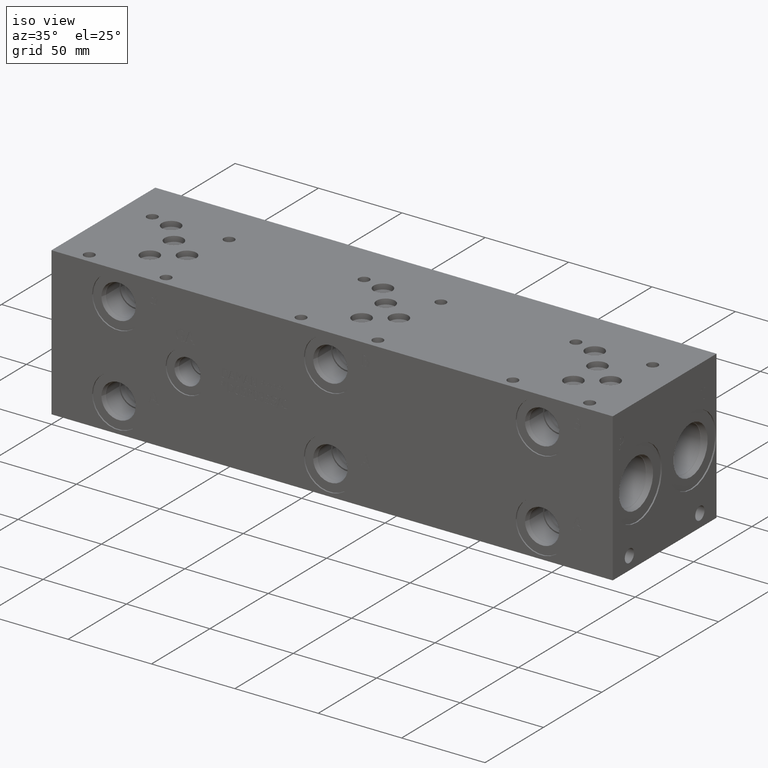
[diagram: clean part render]
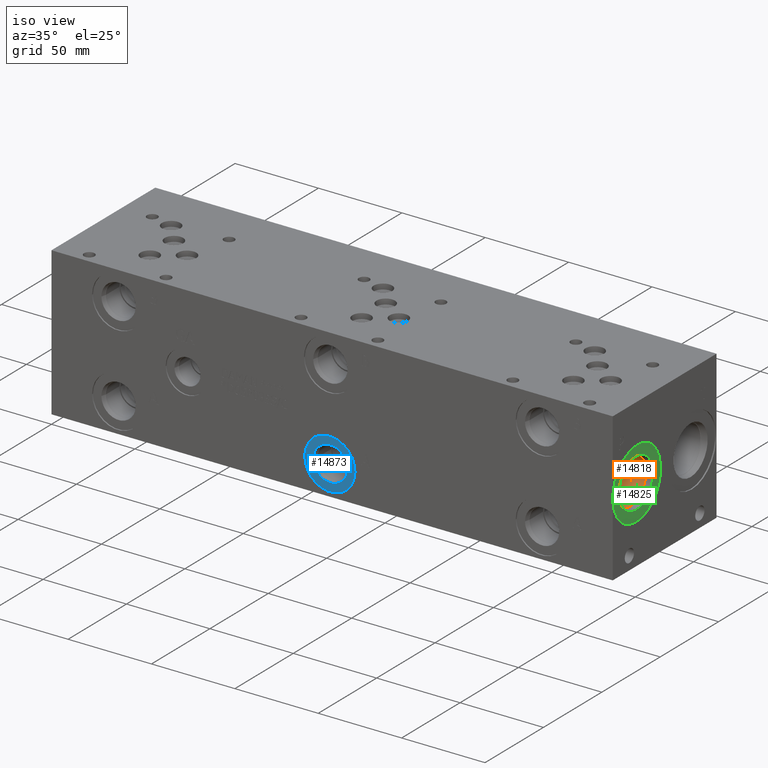
[diagram: same view with three faces highlighted in distinct colors, each labeled with its STEP entity id]
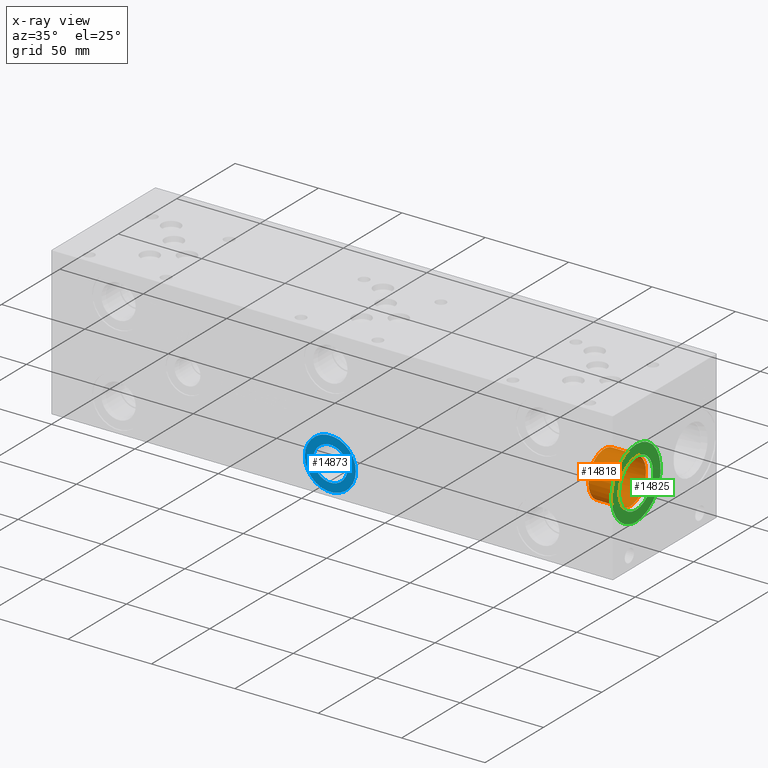
[diagram: x-ray of the same camera — body ghosted, the three highlighted faces saturated]
A machine part, iso view with three faces highlighted in distinct colors.
The next image is the same camera in x-ray (body ghosted, the three faces saturated) — at least one of them is partly hidden behind the body in this view.
Their STEP definitions:

[orange] entity #14818 — the highlighted cylindrical surface (bore or boss wall) has radius 13.5001 mm, axis along (1, 0, 0).
#101=CYLINDRICAL_SURFACE('',#15490,13.5001);
#270=CIRCLE('',#15487,13.5001);
#271=CIRCLE('',#15488,13.5001);
#273=CIRCLE('',#15491,13.5001);
#274=CIRCLE('',#15492,13.5001);
#1891=FACE_OUTER_BOUND('',#2739,.T.);
#2739=EDGE_LOOP('',(#12278,#12279,#12280,#12281,#12282,#12283));
#4137=LINE('',#25105,#5434);
#5434=VECTOR('',#18063,13.5001);
#6681=VERTEX_POINT('',#25095);
#6682=VERTEX_POINT('',#25096);
#6684=VERTEX_POINT('',#25102);
#6685=VERTEX_POINT('',#25103);
#8644=EDGE_CURVE('',#6681,#6682,#270,.T.);
#8645=EDGE_CURVE('',#6682,#6681,#271,.T.);
#8647=EDGE_CURVE('',#6684,#6685,#273,.T.);
#8648=EDGE_CURVE('',#6684,#6682,#4137,.T.);
#8649=EDGE_CURVE('',#6685,#6684,#274,.T.);
#12278=ORIENTED_EDGE('',*,*,#8647,.F.);
#12279=ORIENTED_EDGE('',*,*,#8648,.T.);
#12280=ORIENTED_EDGE('',*,*,#8644,.F.);
#12281=ORIENTED_EDGE('',*,*,#8645,.F.);
#12282=ORIENTED_EDGE('',*,*,#8648,.F.);
#12283=ORIENTED_EDGE('',*,*,#8649,.F.);
#14818=ADVANCED_FACE('',(#1891),#101,.F.);
#15487=AXIS2_PLACEMENT_3D('',#25097,#18053,#18054);
#15488=AXIS2_PLACEMENT_3D('',#25098,#18055,#18056);
#15490=AXIS2_PLACEMENT_3D('',#25101,#18059,#18060);
#15491=AXIS2_PLACEMENT_3D('',#25104,#18061,#18062);
#15492=AXIS2_PLACEMENT_3D('',#25106,#18064,#18065);
#18053=DIRECTION('center_axis',(1.,0.,0.));
#18054=DIRECTION('ref_axis',(0.,1.,0.));
#18055=DIRECTION('center_axis',(1.,0.,0.));
#18056=DIRECTION('ref_axis',(0.,1.,0.));
#18059=DIRECTION('center_axis',(1.,0.,0.));
#18060=DIRECTION('ref_axis',(0.,1.,0.));
#18061=DIRECTION('center_axis',(-1.,0.,0.));
#18062=DIRECTION('ref_axis',(0.,1.,0.));
#18063=DIRECTION('',(-1.,0.,0.));
#18064=DIRECTION('center_axis',(-1.,0.,0.));
#18065=DIRECTION('ref_axis',(0.,1.,0.));
#25095=CARTESIAN_POINT('',(316.7126,34.5821,44.45));
#25096=CARTESIAN_POINT('',(316.7126,7.5819,44.45));
#25097=CARTESIAN_POINT('Origin',(316.7126,21.082,44.45));
#25098=CARTESIAN_POINT('Origin',(316.7126,21.082,44.45));
#25101=CARTESIAN_POINT('Origin',(326.6313,21.082,44.45));
#25102=CARTESIAN_POINT('',(332.2701,7.5819,44.45));
#25103=CARTESIAN_POINT('',(332.2701,21.082,57.9501));
#25104=CARTESIAN_POINT('Origin',(332.2701,21.082,44.45));
#25105=CARTESIAN_POINT('',(326.6313,7.5819,44.45));
#25106=CARTESIAN_POINT('Origin',(332.2701,21.082,44.45));

[blue] entity #14873 — the highlighted planar face has unit normal (0, 1, 0).
#353=CIRCLE('',#15625,15.3162);
#354=CIRCLE('',#15626,15.3162);
#355=CIRCLE('',#15628,10.2997);
#356=CIRCLE('',#15629,10.2997);
#676=FACE_BOUND('',#2806,.T.);
#1946=FACE_OUTER_BOUND('',#2805,.T.);
#2805=EDGE_LOOP('',(#12553,#12554));
#2806=EDGE_LOOP('',(#12555,#12556));
#6770=VERTEX_POINT('',#25365);
#6771=VERTEX_POINT('',#25367);
#6772=VERTEX_POINT('',#25371);
#6773=VERTEX_POINT('',#25372);
#8771=EDGE_CURVE('',#6770,#6771,#353,.T.);
#8772=EDGE_CURVE('',#6771,#6770,#354,.T.);
#8773=EDGE_CURVE('',#6772,#6773,#355,.T.);
#8774=EDGE_CURVE('',#6773,#6772,#356,.T.);
#12553=ORIENTED_EDGE('',*,*,#8772,.F.);
#12554=ORIENTED_EDGE('',*,*,#8771,.F.);
#12555=ORIENTED_EDGE('',*,*,#8773,.T.);
#12556=ORIENTED_EDGE('',*,*,#8774,.T.);
#13681=PLANE('',#15627);
#14873=ADVANCED_FACE('',(#1946,#676),#13681,.F.);
#15625=AXIS2_PLACEMENT_3D('',#25368,#18373,#18374);
#15626=AXIS2_PLACEMENT_3D('',#25369,#18375,#18376);
#15627=AXIS2_PLACEMENT_3D('',#25370,#18377,#18378);
#15628=AXIS2_PLACEMENT_3D('',#25373,#18379,#18380);
#15629=AXIS2_PLACEMENT_3D('',#25374,#18381,#18382);
#18373=DIRECTION('center_axis',(0.,1.,0.));
#18374=DIRECTION('ref_axis',(1.,0.,0.));
#18375=DIRECTION('center_axis',(0.,1.,0.));
#18376=DIRECTION('ref_axis',(1.,0.,0.));
#18377=DIRECTION('center_axis',(0.,1.,0.));
#18378=DIRECTION('ref_axis',(0.,0.,1.));
#18379=DIRECTION('center_axis',(0.,1.,0.));
#18380=DIRECTION('ref_axis',(1.,0.,0.));
#18381=DIRECTION('center_axis',(0.,1.,0.));
#18382=DIRECTION('ref_axis',(1.,0.,0.));
#25365=CARTESIAN_POINT('',(151.3586,0.7874,17.4752));
#25367=CARTESIAN_POINT('',(181.991,0.7874,17.4752));
#25368=CARTESIAN_POINT('Origin',(166.6748,0.7874,17.4752));
#25369=CARTESIAN_POINT('Origin',(166.6748,0.7874,17.4752));
#25370=CARTESIAN_POINT('Origin',(176.9745,0.7874,17.4752));
#25371=CARTESIAN_POINT('',(176.9745,0.7874,17.4752));
#25372=CARTESIAN_POINT('',(156.3751,0.787399999999999,17.4752));
#25373=CARTESIAN_POINT('Origin',(166.6748,0.7874,17.4752));
#25374=CARTESIAN_POINT('Origin',(166.6748,0.7874,17.4752));

[green] entity #14825 — the highlighted planar face has unit normal (-1, 0, 0).
#280=CIRCLE('',#15504,21.0185);
#281=CIRCLE('',#15505,21.0185);
#282=CIRCLE('',#15507,14.5923);
#283=CIRCLE('',#15508,14.5923);
#666=FACE_BOUND('',#2748,.T.);
#1898=FACE_OUTER_BOUND('',#2747,.T.);
#2747=EDGE_LOOP('',(#12314,#12315));
#2748=EDGE_LOOP('',(#12316,#12317));
#6691=VERTEX_POINT('',#25127);
#6692=VERTEX_POINT('',#25129);
#6693=VERTEX_POINT('',#25133);
#6694=VERTEX_POINT('',#25134);
#8660=EDGE_CURVE('',#6691,#6692,#280,.T.);
#8661=EDGE_CURVE('',#6692,#6691,#281,.T.);
#8662=EDGE_CURVE('',#6693,#6694,#282,.T.);
#8663=EDGE_CURVE('',#6694,#6693,#283,.T.);
#12314=ORIENTED_EDGE('',*,*,#8661,.F.);
#12315=ORIENTED_EDGE('',*,*,#8660,.F.);
#12316=ORIENTED_EDGE('',*,*,#8662,.T.);
#12317=ORIENTED_EDGE('',*,*,#8663,.T.);
#13671=PLANE('',#15506);
#14825=ADVANCED_FACE('',(#1898,#666),#13671,.F.);
#15504=AXIS2_PLACEMENT_3D('',#25130,#18093,#18094);
#15505=AXIS2_PLACEMENT_3D('',#25131,#18095,#18096);
#15506=AXIS2_PLACEMENT_3D('',#25132,#18097,#18098);
#15507=AXIS2_PLACEMENT_3D('',#25135,#18099,#18100);
#15508=AXIS2_PLACEMENT_3D('',#25136,#18101,#18102);
#18093=DIRECTION('center_axis',(-1.,0.,0.));
#18094=DIRECTION('ref_axis',(0.,0.,1.));
#18095=DIRECTION('center_axis',(-1.,0.,0.));
#18096=DIRECTION('ref_axis',(0.,0.,1.));
#18097=DIRECTION('center_axis',(-1.,0.,0.));
#18098=DIRECTION('ref_axis',(0.,0.,1.));
#18099=DIRECTION('center_axis',(-1.,0.,0.));
#18100=DIRECTION('ref_axis',(0.,0.,1.));
#18101=DIRECTION('center_axis',(-1.,0.,0.));
#18102=DIRECTION('ref_axis',(0.,0.,1.));
#25127=CARTESIAN_POINT('',(335.7626,21.082,65.4685));
#25129=CARTESIAN_POINT('',(335.7626,21.082,23.4315));
#25130=CARTESIAN_POINT('Origin',(335.7626,21.082,44.45));
#25131=CARTESIAN_POINT('Origin',(335.7626,21.082,44.45));
#25132=CARTESIAN_POINT('Origin',(335.7626,21.082,29.8577));
#25133=CARTESIAN_POINT('',(335.7626,21.082,29.8577));
#25134=CARTESIAN_POINT('',(335.7626,21.082,59.0423));
#25135=CARTESIAN_POINT('Origin',(335.7626,21.082,44.45));
#25136=CARTESIAN_POINT('Origin',(335.7626,21.082,44.45));